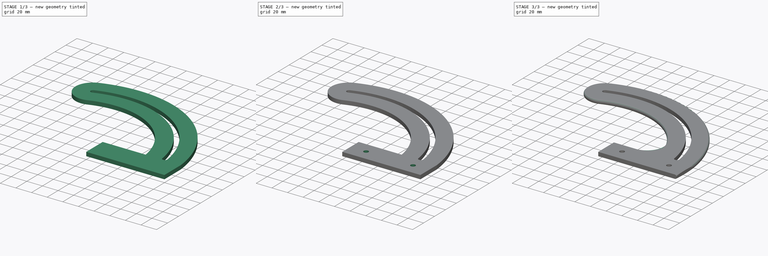
[diagram: build sequence overview — one tinted view per stage of 3, left to right]
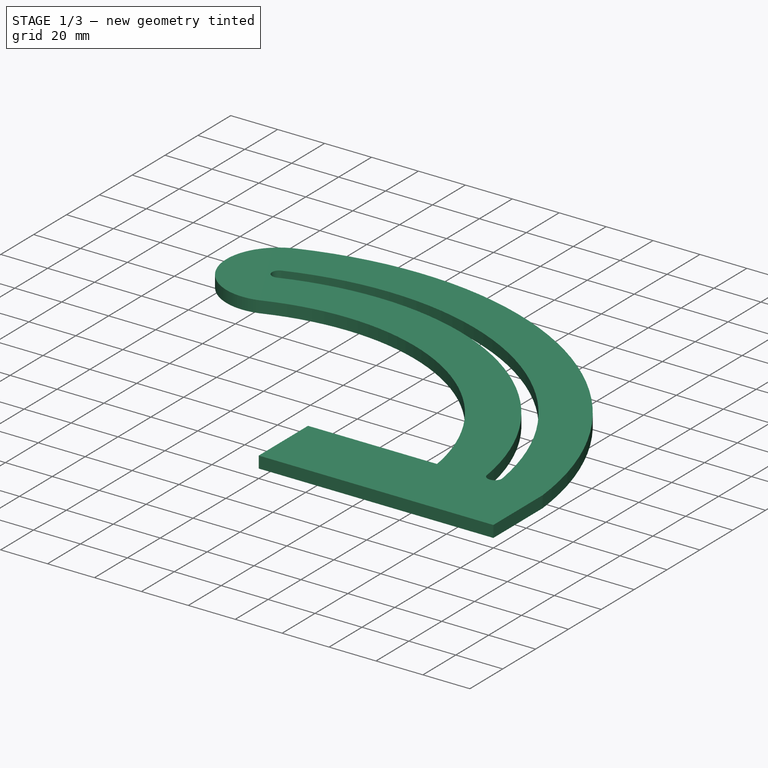
[diagram: stage 1 of 3 — iso view after this stage's code; geometry added in this stage tinted green]
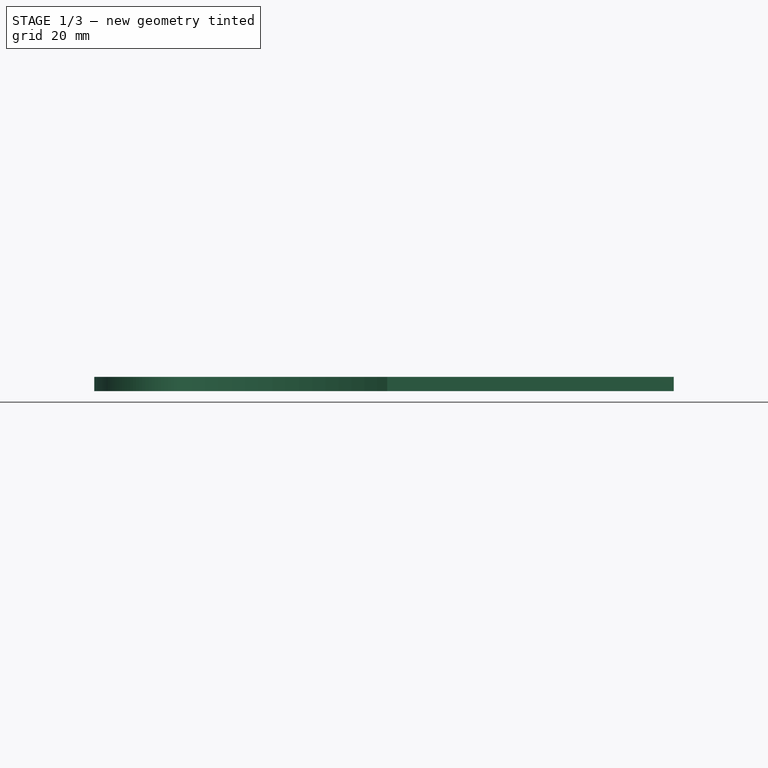
[diagram: stage 1 of 3 — front view after this stage's code; geometry added in this stage tinted green]
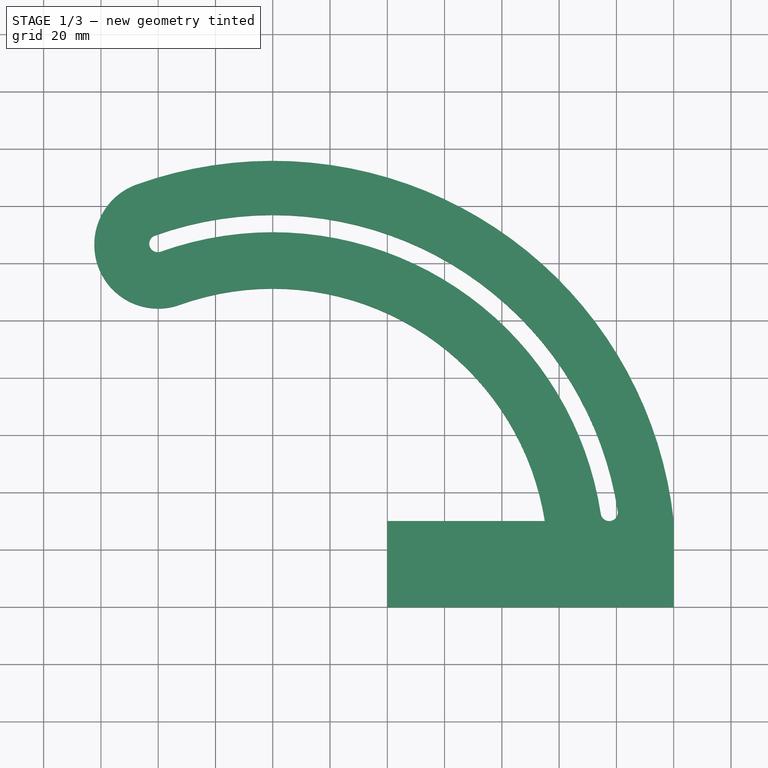
[diagram: stage 1 of 3 — top view after this stage's code; geometry added in this stage tinted green]
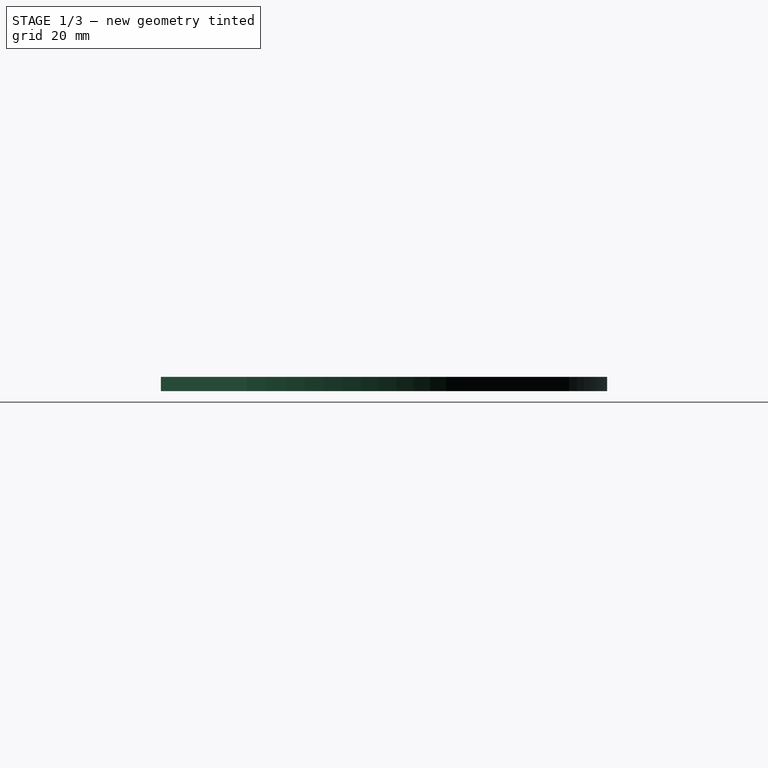
[diagram: stage 1 of 3 — right view after this stage's code; geometry added in this stage tinted green]
FCSTD DOCUMENT  (FreeCAD 0.19R24291 (Git))
Label: Halter_Oben_v2
License: All rights reserved
LicenseURL: http://en.wikipedia.org/wiki/All_rights_reserved
objects: Sketcher::SketchObject×3, PartDesign::Pocket×2, PartDesign::Fillet×2, PartDesign::Pad×1, PartDesign::Body×1
note: 14 computed .brp shape members not serialized (recipe doc carries the construction recipe); baked Part::Feature solids carry a one-line shape summary decoded from their .brp

FEATURE [Sketcher::SketchObject] Sketch
  FullyConstrained = true
  MapMode = 5
  Support = -> [XY_Plane]
  sketch-geometry (10):
    g0: LineSegment StartX=0 StartY=0 StartZ=0 EndX=100 EndY=0 EndZ=0
    g1: LineSegment StartX=0 StartY=0 StartZ=0 EndX=0 EndY=30 EndZ=0
    g2: LineSegment StartX=0 StartY=30 StartZ=0 EndX=55 EndY=30 EndZ=0
    g3: LineSegment StartX=0 StartY=15 StartZ=0 EndX=-40 EndY=15 EndZ=0
    g4: LineSegment StartX=55 StartY=30 StartZ=0 EndX=100 EndY=30 EndZ=0
    g5: LineSegment StartX=100 StartY=30 StartZ=0 EndX=100 EndY=0 EndZ=0
    g6: ArcOfCircle CenterX=-40 CenterY=15 CenterZ=0 NormalX=0 NormalY=0 NormalZ=1 AngleXU=0 Radius=140.801 StartAngle=0.106736 EndAngle=1.91515
    g7: ArcOfCircle CenterX=-40 CenterY=15 CenterZ=0 NormalX=0 NormalY=0 NormalZ=1 AngleXU=0 Radius=96.1769 StartAngle=0.156602 EndAngle=1.91515
    g8: LineSegment StartX=-40 StartY=15 StartZ=0 EndX=-87.5322 EndY=147.536 EndZ=0
    g9: ArcOfCircle CenterX=-80 CenterY=126.533 CenterZ=0 NormalX=0 NormalY=0 NormalZ=1 AngleXU=0 Radius=22.3122 StartAngle=1.91515 EndAngle=5.05674
  constraints (28):
    c: Coincident(g0,g-1)
    c: Horizontal(g0)
    c: DistanceX(g0,g0) = 100
    c: Coincident(g1,g0)
    c: PointOnObject(g1,g-2)
    c: Coincident(g2,g1)
    c: Horizontal(g2)
    c: Horizontal(g3)
    c: Symmetric(g0,g1,g3)
    c: DistanceX(g3,g3) = 40
    c: DistanceY(g1,g1) = 30
    c: Coincident(g4,g2)
    c: Horizontal(g4)
    c: Coincident(g5,g4)
    c: Coincident(g5,g0)
    c: Vertical(g5)
    c: Coincident(g6,g3)
    c: Coincident(g6,g5)
    c: Coincident(g7,g6)
    c: Coincident(g7,g2)
    c: Coincident(g8,g6)
    c: Coincident(g8,g6)
    c: PointOnObject(g7,g8)
    c: DistanceX(g4,g4) = 45
    c: Coincident(g9,g6)
    c: Coincident(g9,g7)
    c: PointOnObject(g9,g8)
    c: DistanceX(g9,g6) = 40
FEATURE [PartDesign::Pad] Pad  label="Grundplatte"
  Direction = (1,1,1)
  Length = 5
  Length2 = 100
  Profile = -> Sketch
  Type = 0
FEATURE [Sketcher::SketchObject] Sketch001
  ExternalGeometry = -> [Pad]
  FullyConstrained = true
  MapMode = 5
  Placement = pos=(0,0,0) rot=(1,0,0;3.14159rad)
  Support = -> [Pad]
  sketch-geometry (9):
    g0: ArcOfCircle CenterX=-40 CenterY=-15 CenterZ=0 NormalX=0 NormalY=0 NormalZ=1 AngleXU=0 Radius=121.871 StartAngle=4.36804 EndAngle=6.13118
    g1: ArcOfCircle CenterX=-40 CenterY=-15 CenterZ=0 NormalX=0 NormalY=0 NormalZ=1 AngleXU=0 Radius=115.871 StartAngle=4.36804 EndAngle=6.13118
    g2: LineSegment StartX=-40 StartY=-15 StartZ=0 EndX=-81.1416 EndY=-129.716 EndZ=0
    g3: LineSegment StartX=-40 StartY=-15 StartZ=0 EndX=80.4654 EndY=-33.4543 EndZ=0
    g4: ArcOfCircle CenterX=77.5 CenterY=-33 CenterZ=0 NormalX=0 NormalY=0 NormalZ=1 AngleXU=0 Radius=3 StartAngle=6.13118 EndAngle=9.27277
    g5: LineSegment StartX=100 StartY=-30 StartZ=0 EndX=77.5 EndY=-30 EndZ=0
    g6: LineSegment StartX=77.5 StartY=-30 StartZ=0 EndX=55 EndY=-30 EndZ=0
    g7: ArcOfCircle CenterX=-80.1288 CenterY=-126.892 CenterZ=0 NormalX=0 NormalY=0 NormalZ=1 AngleXU=0 Radius=3 StartAngle=1.22645 EndAngle=4.36804
    g8: LineSegment StartX=-72.4678 StartY=-105.531 StartZ=0 EndX=-87.5322 EndY=-147.536 EndZ=0
  constraints (25):
    c: Coincident(g0,g-3)
    c: Coincident(g1,g0)
    c: Coincident(g2,g0)
    c: Coincident(g2,g0)
    c: Coincident(g3,g0)
    c: Coincident(g3,g0)
    c: PointOnObject(g1,g3)
    c: PointOnObject(g1,g2)
    c: Distance(g1,g0) = 6
    c: PointOnObject(g4,g3)
    c: Coincident(g4,g0)
    c: Coincident(g4,g1)
    c: Coincident(g5,g-3)
    c: PointOnObject(g5,g4)
    c: Horizontal(g5)
    c: Coincident(g6,g5)
    c: Coincident(g6,g-4)
    c: Tangent(g6,g4)
    c: Equal(g6,g5)
    c: PointOnObject(g7,g2)
    c: Coincident(g7,g1)
    c: Coincident(g7,g0)
    c: Coincident(g8,g-4)
    c: Coincident(g8,g-3)
    c: PointOnObject(g7,g8)
FEATURE [PartDesign::Pocket] Pocket  label="Nut"
  BaseFeature = -> Pad
  Length = 5
  Length2 = 100
  Profile = -> Sketch001
  Type = 1
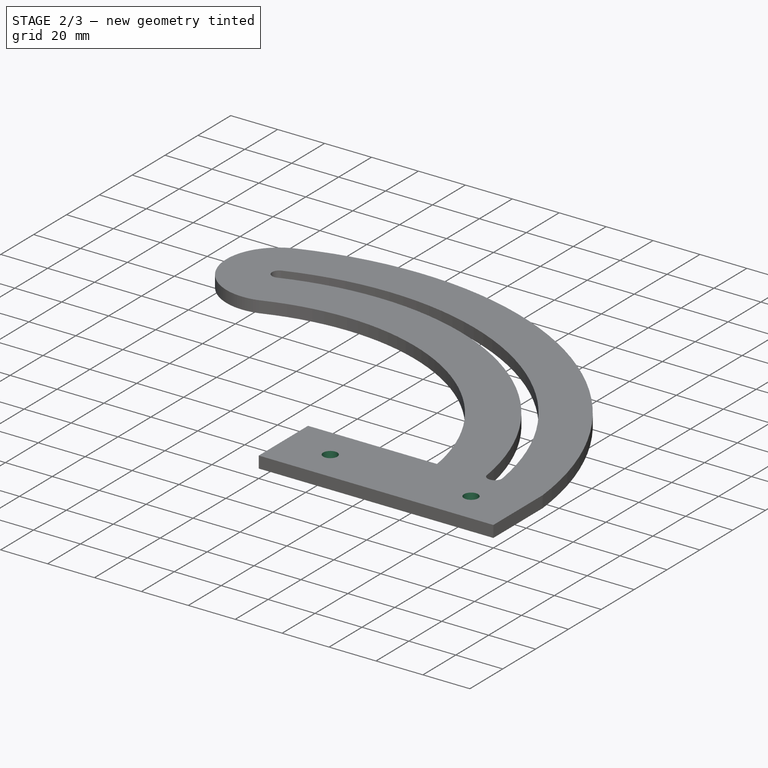
[diagram: stage 2 of 3 — iso view after this stage's code; geometry added in this stage tinted green]
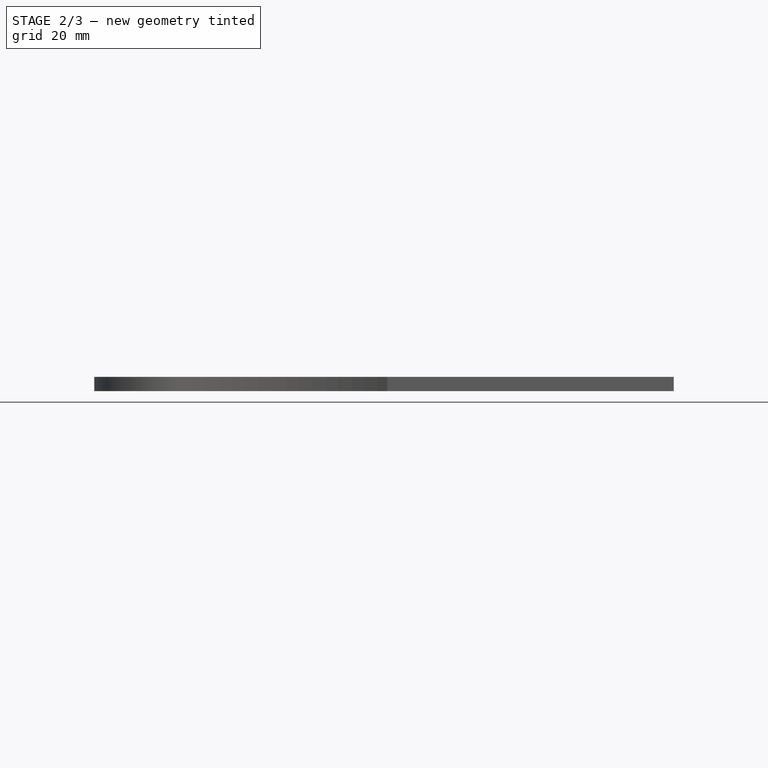
[diagram: stage 2 of 3 — front view after this stage's code; geometry added in this stage tinted green]
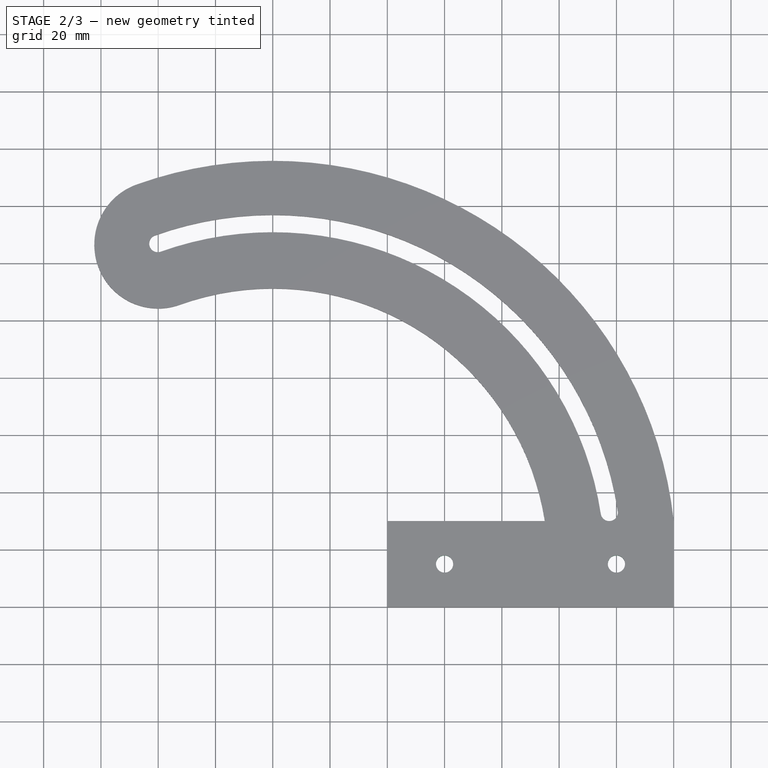
[diagram: stage 2 of 3 — top view after this stage's code; geometry added in this stage tinted green]
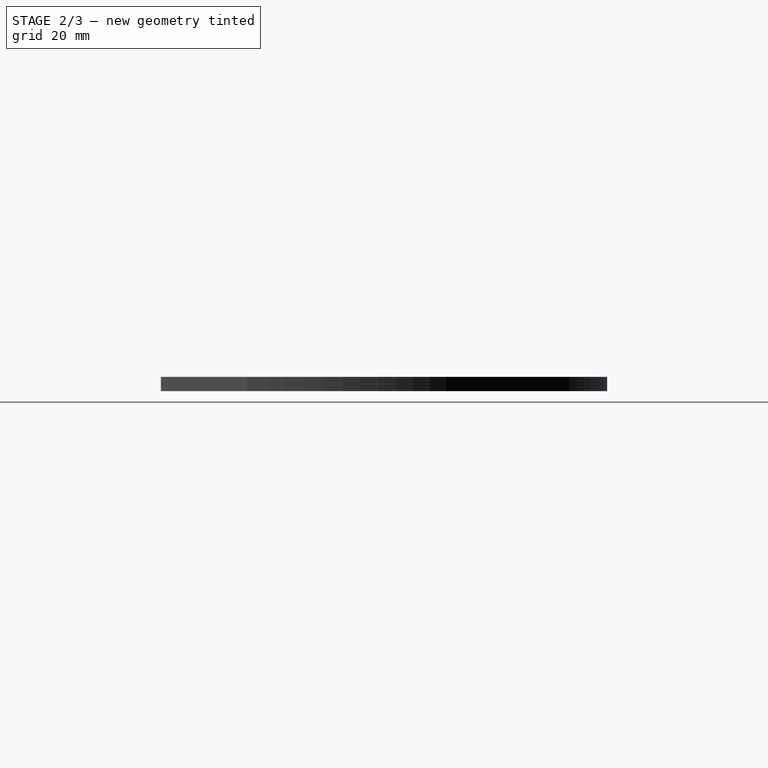
[diagram: stage 2 of 3 — right view after this stage's code; geometry added in this stage tinted green]
FEATURE [Sketcher::SketchObject] Sketch002
  ExternalGeometry = -> [Pocket]
  FullyConstrained = true
  MapMode = 5
  Placement = pos=(0,0,0) rot=(1,0,0;3.14159rad)
  Support = -> [Pocket]
  sketch-geometry (3):
    g0: Circle CenterX=20 CenterY=-15 CenterZ=0 NormalX=0 NormalY=0 NormalZ=1 AngleXU=0 Radius=3
    g1: Circle CenterX=80 CenterY=-15 CenterZ=0 NormalX=0 NormalY=0 NormalZ=1 AngleXU=0 Radius=3
    g2: LineSegment StartX=20 StartY=-15 StartZ=0 EndX=80 EndY=-15 EndZ=0
  constraints (8):
    c: Coincident(g2,g0)
    c: Coincident(g2,g1)
    c: Horizontal(g2)
    c: Equal(g0,g1)
    c: DistanceX(g-1,g0) = 20
    c: DistanceX(g1,g-3) = 20
    c: DistanceY(g0,g-1) = 15
    c: Diameter(g1) = 6
FEATURE [PartDesign::Pocket] Pocket001  label="Montagebohrungen"
  BaseFeature = -> Pocket
  Length = 5
  Length2 = 100
  Profile = -> Sketch002
  Type = 1
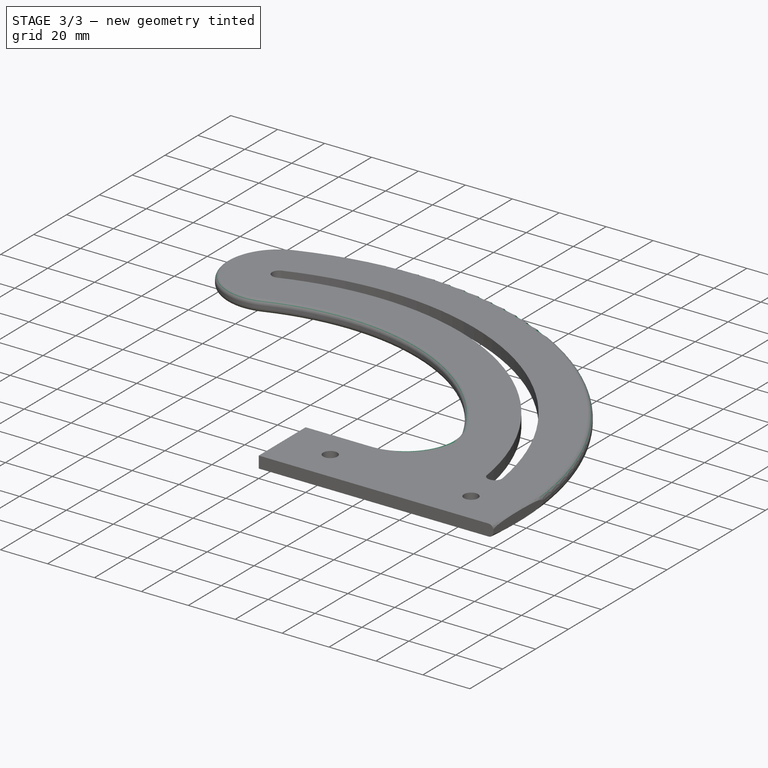
[diagram: stage 3 of 3 — iso view after this stage's code; geometry added in this stage tinted green]
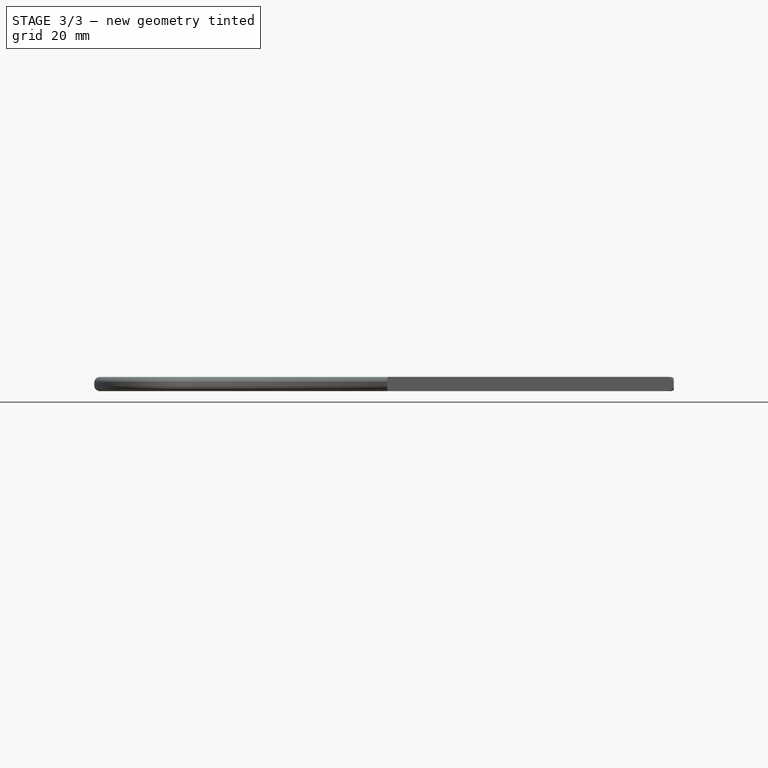
[diagram: stage 3 of 3 — front view after this stage's code; geometry added in this stage tinted green]
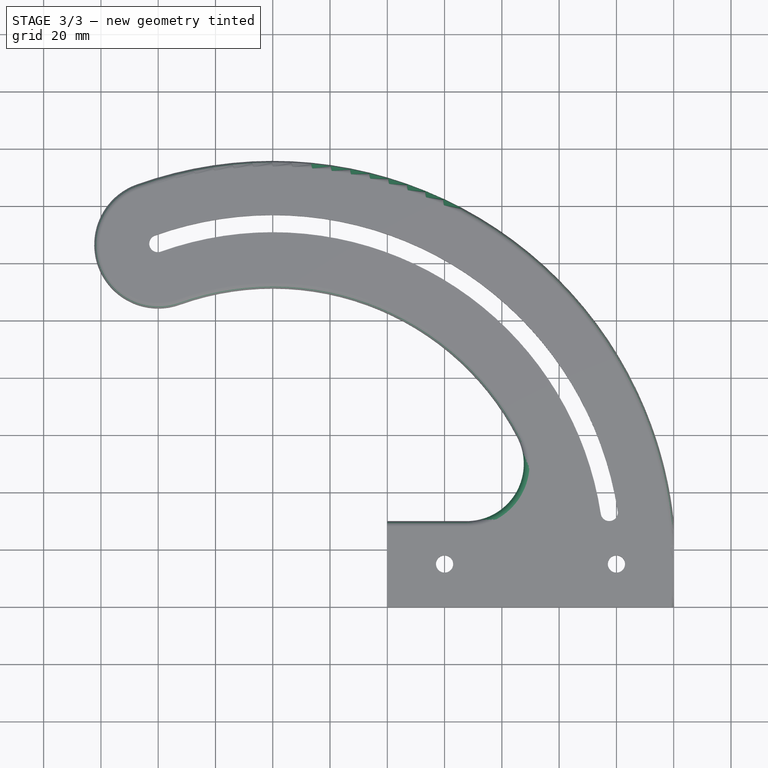
[diagram: stage 3 of 3 — top view after this stage's code; geometry added in this stage tinted green]
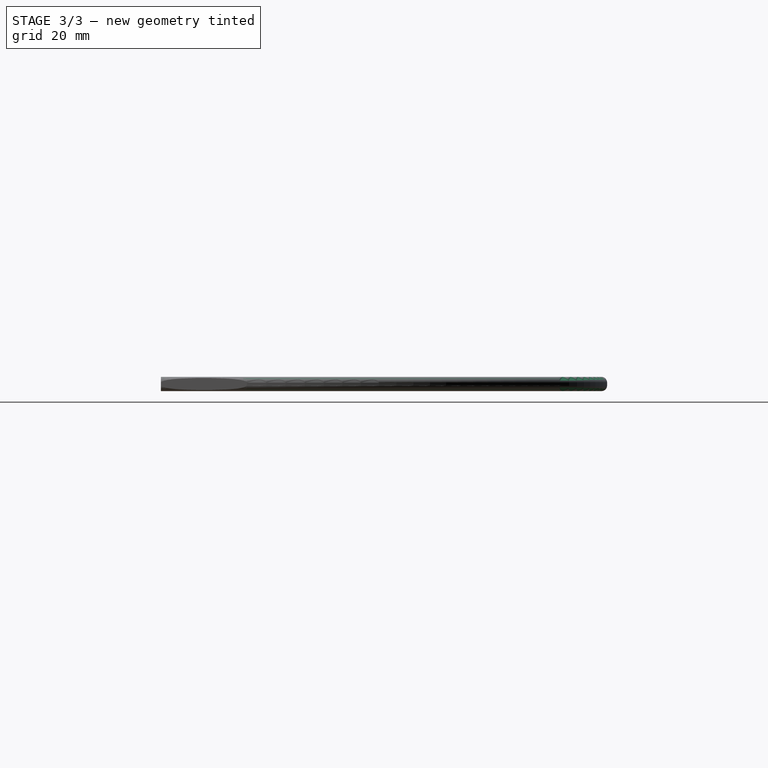
[diagram: stage 3 of 3 — right view after this stage's code; geometry added in this stage tinted green]
FEATURE [PartDesign::Fillet] Fillet
  Base = -> Pocket001 [Edge31]
  BaseFeature = -> Pocket001
  Radius = 20
  SupportTransform = false
FEATURE [PartDesign::Fillet] Fillet001
  Base = -> Fillet [Edge4,Edge23]
  BaseFeature = -> Fillet
  Radius = 2
  SupportTransform = false
FEATURE [PartDesign::Body] Body
  Group = -> [Sketch,Pad,Sketch001,Pocket,Sketch002,Pocket001,Fillet,Fillet001]
  Origin = -> Origin
  Tip = -> Fillet001
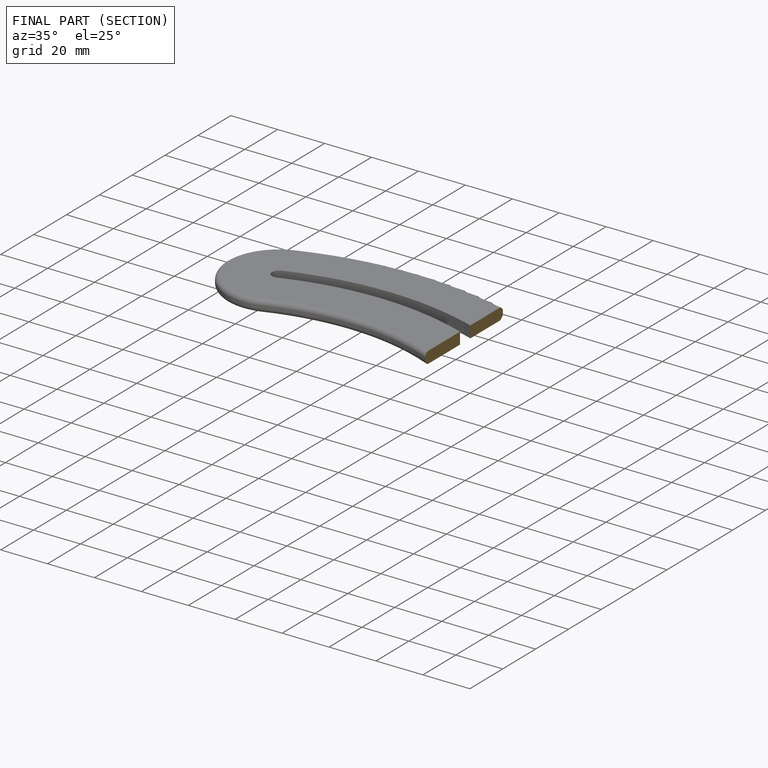
[diagram: finished part — half-section view (interior)]
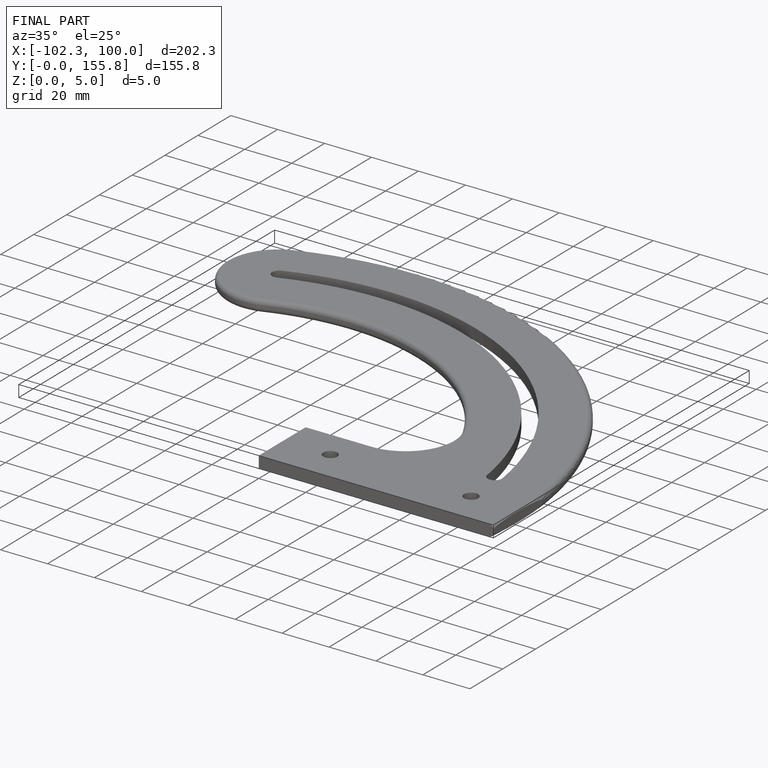
[diagram: finished part — iso view with bounding-box wireframe]
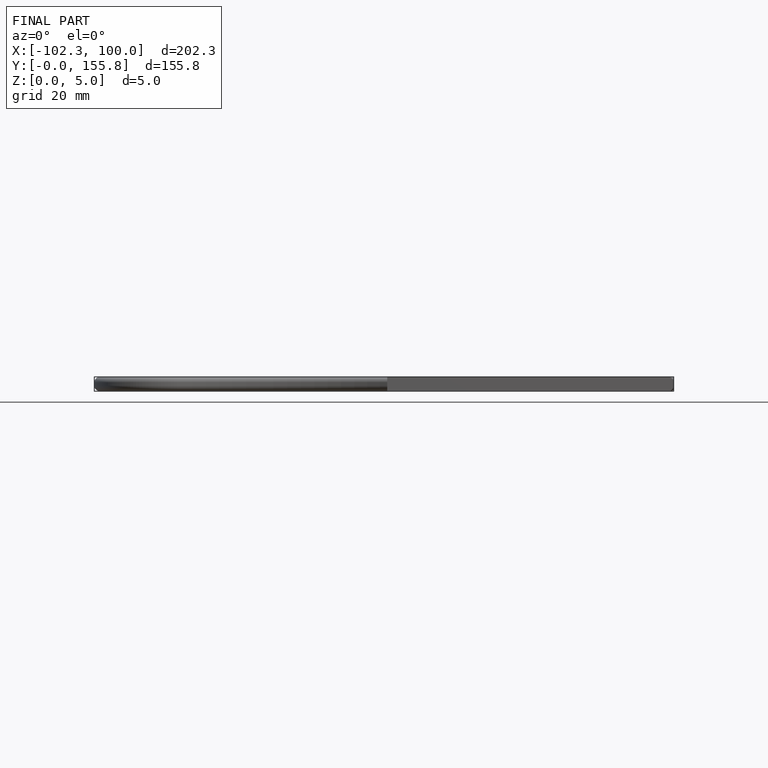
[diagram: finished part — front view with bounding-box wireframe]
